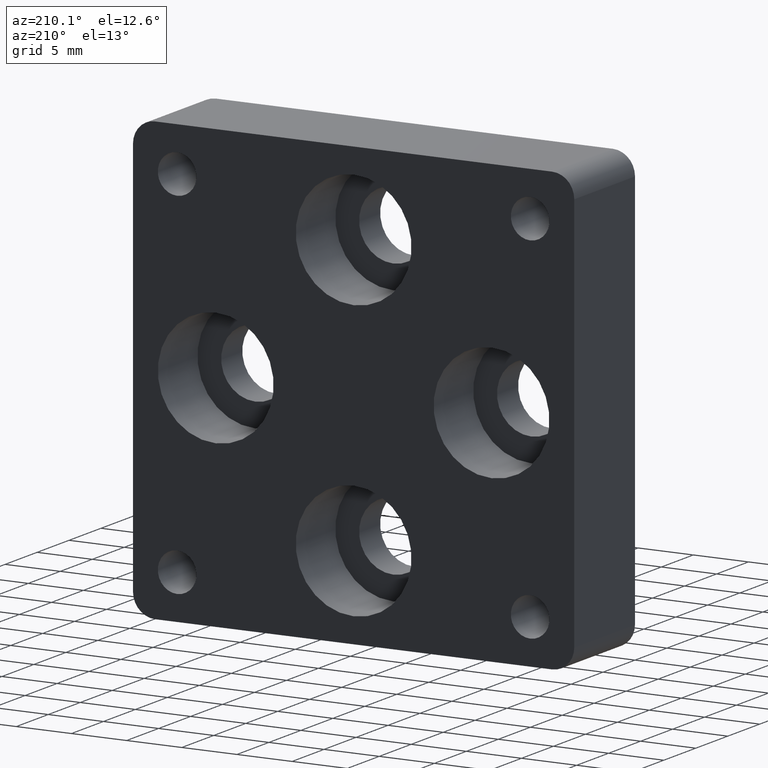
[diagram: clean part render]
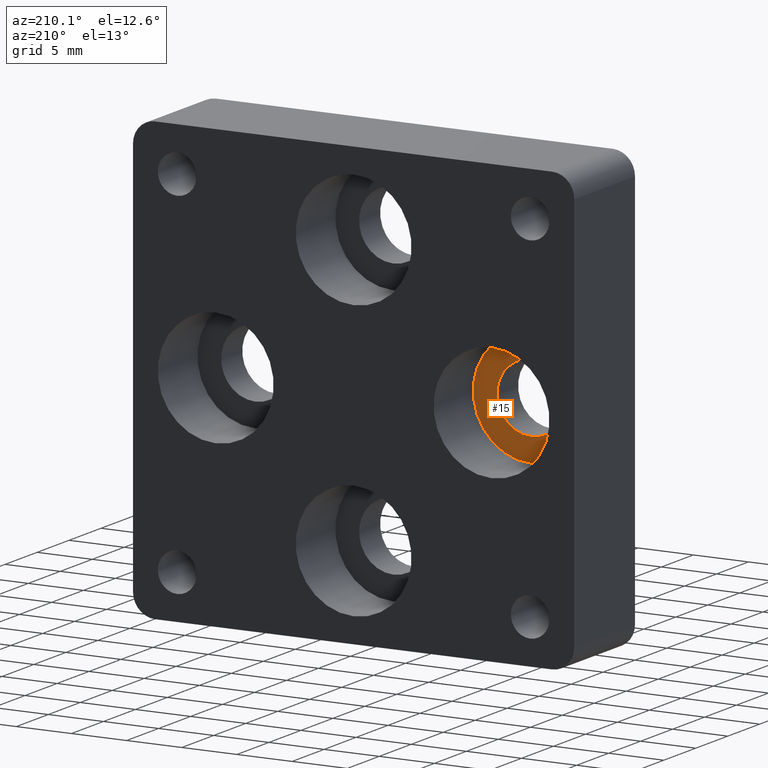
[diagram: same view with one face highlighted and labeled with its STEP entity id]
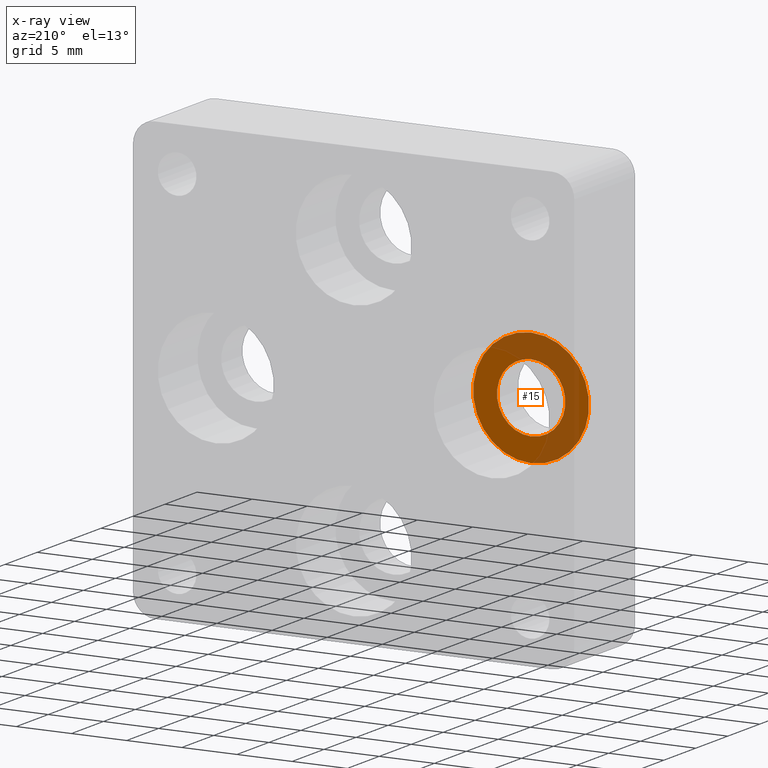
[diagram: x-ray of the same camera — body ghosted, the highlighted face saturated]
A machine part, auxiliary view. The second image highlights one B-rep face of the part: STEP entity #15.
The next image is the same camera in x-ray: the body ghosted, the highlighted face saturated — about 49% of this face is hidden behind the body in this view.
In plain terms, the highlighted planar face has unit normal (0, 1, 0).
Its self-contained STEP definition (entity closure, byte-faithful):
#8 = AXIS2_PLACEMENT_3D ( 'NONE', #287, #547, #352 ) ;
#15 = ADVANCED_FACE ( 'NONE', ( #284, #404 ), #604, .T. ) ;
#51 = DIRECTION ( 'NONE',  ( 0.000000000000000000, 1.000000000000000000, 0.000000000000000000 ) ) ;
#58 = VERTEX_POINT ( 'NONE', #806 ) ;
#121 = AXIS2_PLACEMENT_3D ( 'NONE', #295, #51, #293 ) ;
#183 = CARTESIAN_POINT ( 'NONE',  ( -12.49999999999999822, 3.299999999999999822, 3.100000000000000533 ) ) ;
#269 = ORIENTED_EDGE ( 'NONE', *, *, #733, .F. ) ;
#273 = CIRCLE ( 'NONE', #673, 3.100000000000000533 ) ;
#284 = FACE_BOUND ( 'NONE', #653, .T. ) ;
#287 = CARTESIAN_POINT ( 'NONE',  ( -12.49999999999999822, 3.299999999999999822, 0.000000000000000000 ) ) ;
#293 = DIRECTION ( 'NONE',  ( 0.000000000000000000, -0.000000000000000000, 1.000000000000000000 ) ) ;
#295 = CARTESIAN_POINT ( 'NONE',  ( -12.49999999999999822, 3.299999999999999822, 0.000000000000000000 ) ) ;
#336 = ORIENTED_EDGE ( 'NONE', *, *, #379, .T. ) ;
#344 = DIRECTION ( 'NONE',  ( 0.000000000000000000, 0.000000000000000000, 1.000000000000000000 ) ) ;
#352 = DIRECTION ( 'NONE',  ( 0.000000000000000000, 0.000000000000000000, 1.000000000000000000 ) ) ;
#364 = CIRCLE ( 'NONE', #8, 5.250000000000000000 ) ;
#379 = EDGE_CURVE ( 'NONE', #58, #58, #364, .T. ) ;
#404 = FACE_OUTER_BOUND ( 'NONE', #432, .T. ) ;
#432 = EDGE_LOOP ( 'NONE', ( #336 ) ) ;
#547 = DIRECTION ( 'NONE',  ( 0.000000000000000000, 1.000000000000000000, 0.000000000000000000 ) ) ;
#569 = VERTEX_POINT ( 'NONE', #183 ) ;
#604 = PLANE ( 'NONE',  #121 ) ;
#647 = DIRECTION ( 'NONE',  ( 0.000000000000000000, 1.000000000000000000, 0.000000000000000000 ) ) ;
#653 = EDGE_LOOP ( 'NONE', ( #269 ) ) ;
#673 = AXIS2_PLACEMENT_3D ( 'NONE', #712, #647, #344 ) ;
#712 = CARTESIAN_POINT ( 'NONE',  ( -12.49999999999999822, 3.299999999999999822, 0.000000000000000000 ) ) ;
#733 = EDGE_CURVE ( 'NONE', #569, #569, #273, .T. ) ;
#806 = CARTESIAN_POINT ( 'NONE',  ( -12.49999999999999822, 3.299999999999999822, 5.250000000000000000 ) ) ;